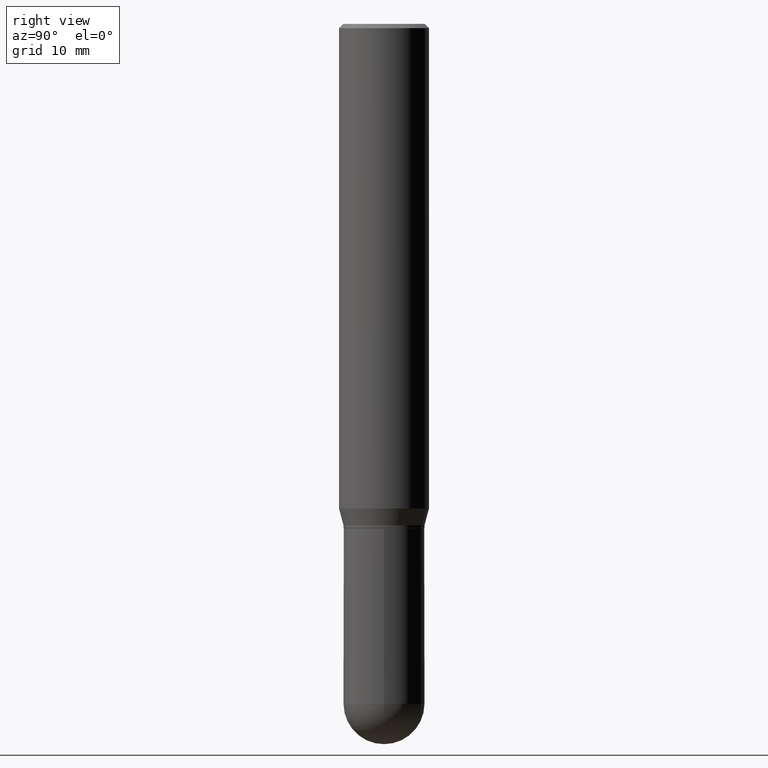
[diagram: clean part render]
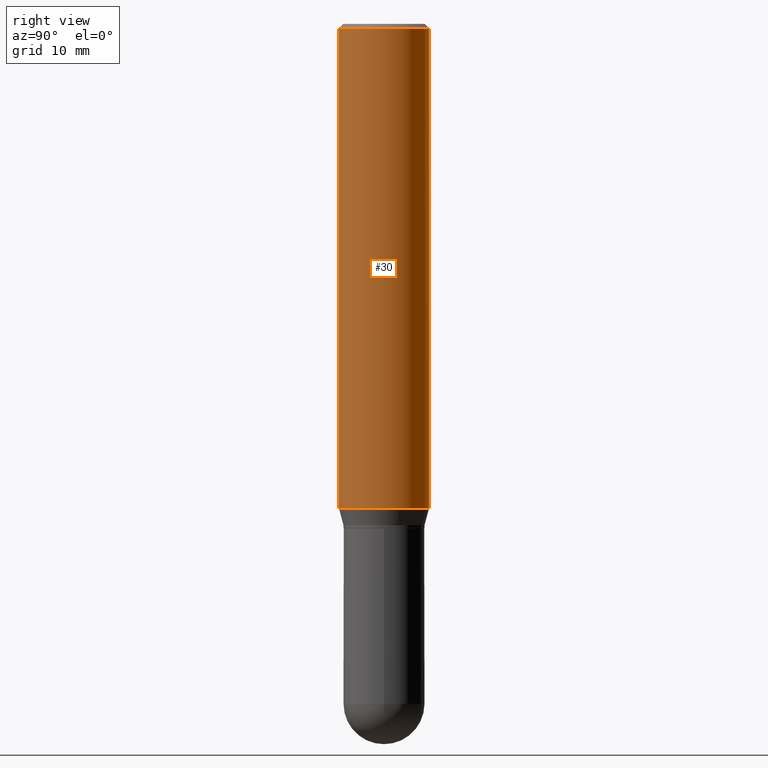
[diagram: same view with one face highlighted and labeled with its STEP entity id]
A machine part, right view. The second image highlights one B-rep face of the part: STEP entity #30.
In plain terms, the highlighted cylindrical surface (partial cylindrical patch) has radius 3.9688 mm, axis along (-0, 0, 1).
Its self-contained STEP definition (entity closure, byte-faithful):
#3 = DIRECTION ( 'NONE',  ( -6.982962677686265133E-15, -1.000000000000000000, 3.496765431890256920E-15 ) ) ;
#29 = ORIENTED_EDGE ( 'NONE', *, *, #301, .T. ) ;
#30 = ADVANCED_FACE ( 'NONE', ( #141 ), #32, .T. ) ;
#32 = CYLINDRICAL_SURFACE ( 'NONE', #287, 0.1562500000000000000 ) ;
#36 = DIRECTION ( 'NONE',  ( -2.445350919548012662E-29, 3.491650159217197762E-15, 1.000000000000000000 ) ) ;
#46 = AXIS2_PLACEMENT_3D ( 'NONE', #236, #485, #321 ) ;
#55 = LINE ( 'NONE', #140, #237 ) ;
#73 = DIRECTION ( 'NONE',  ( -6.982962677686265133E-15, -1.000000000000000000, 3.491650159217197762E-15 ) ) ;
#101 = CARTESIAN_POINT ( 'NONE',  ( 1.110223024625197561E-15, 0.1562499999999999445, -0.01500000000000049905 ) ) ;
#140 = CARTESIAN_POINT ( 'NONE',  ( 1.110223024625156343E-15, 0.1562500000000000000, -5.455703373776871627E-16 ) ) ;
#141 = FACE_OUTER_BOUND ( 'NONE', #289, .T. ) ;
#149 = ORIENTED_EDGE ( 'NONE', *, *, #389, .F. ) ;
#192 = CARTESIAN_POINT ( 'NONE',  ( 3.668026379322007538E-31, -5.237475238825779930E-17, -0.01499999999999995261 ) ) ;
#220 = CARTESIAN_POINT ( 'NONE',  ( 1.110223024625197561E-15, 0.1562499999999941436, -1.681593404861547514 ) ) ;
#221 = DIRECTION ( 'NONE',  ( -2.445350919548012662E-29, 3.491650159217197762E-15, 1.000000000000000000 ) ) ;
#225 = CARTESIAN_POINT ( 'NONE',  ( -1.091087918388478779E-15, -0.1562500000000000833, -0.01499999999999940617 ) ) ;
#236 = CARTESIAN_POINT ( 'NONE',  ( 4.112085978884057268E-29, -5.871535879823409448E-15, -1.681593404861546848 ) ) ;
#237 = VECTOR ( 'NONE', #330, 39.37007874015748143 ) ;
#239 = EDGE_CURVE ( 'NONE', #255, #344, #493, .T. ) ;
#255 = VERTEX_POINT ( 'NONE', #427 ) ;
#259 = ORIENTED_EDGE ( 'NONE', *, *, #239, .F. ) ;
#263 = VERTEX_POINT ( 'NONE', #220 ) ;
#275 = ORIENTED_EDGE ( 'NONE', *, *, #475, .T. ) ;
#282 = CIRCLE ( 'NONE', #46, 0.1562500000000000000 ) ;
#286 = VERTEX_POINT ( 'NONE', #101 ) ;
#287 = AXIS2_PLACEMENT_3D ( 'NONE', #500, #221, #73 ) ;
#289 = EDGE_LOOP ( 'NONE', ( #275, #29, #149, #259 ) ) ;
#301 = EDGE_CURVE ( 'NONE', #263, #286, #55, .T. ) ;
#321 = DIRECTION ( 'NONE',  ( -6.982962677686265133E-15, -1.000000000000000000, 3.496765431890256920E-15 ) ) ;
#322 = VECTOR ( 'NONE', #341, 39.37007874015748143 ) ;
#330 = DIRECTION ( 'NONE',  ( -2.445350919548012662E-29, 3.491650159217197762E-15, 1.000000000000000000 ) ) ;
#339 = CIRCLE ( 'NONE', #438, 0.1562500000000000000 ) ;
#341 = DIRECTION ( 'NONE',  ( -2.445350919548012662E-29, 3.491650159217197762E-15, 1.000000000000000000 ) ) ;
#344 = VERTEX_POINT ( 'NONE', #225 ) ;
#389 = EDGE_CURVE ( 'NONE', #344, #286, #339, .T. ) ;
#427 = CARTESIAN_POINT ( 'NONE',  ( -1.091087918388437956E-15, -0.1562500000000058842, -1.681593404861546404 ) ) ;
#438 = AXIS2_PLACEMENT_3D ( 'NONE', #192, #36, #3 ) ;
#461 = CARTESIAN_POINT ( 'NONE',  ( -1.091087918388478976E-15, -0.1562500000000000000, 5.455703373776871627E-16 ) ) ;
#475 = EDGE_CURVE ( 'NONE', #255, #263, #282, .T. ) ;
#485 = DIRECTION ( 'NONE',  ( -2.445350919548012662E-29, 3.491650159217197762E-15, 1.000000000000000000 ) ) ;
#493 = LINE ( 'NONE', #461, #322 ) ;
#500 = CARTESIAN_POINT ( 'NONE',  ( 0.000000000000000000, 0.000000000000000000, 0.000000000000000000 ) ) ;